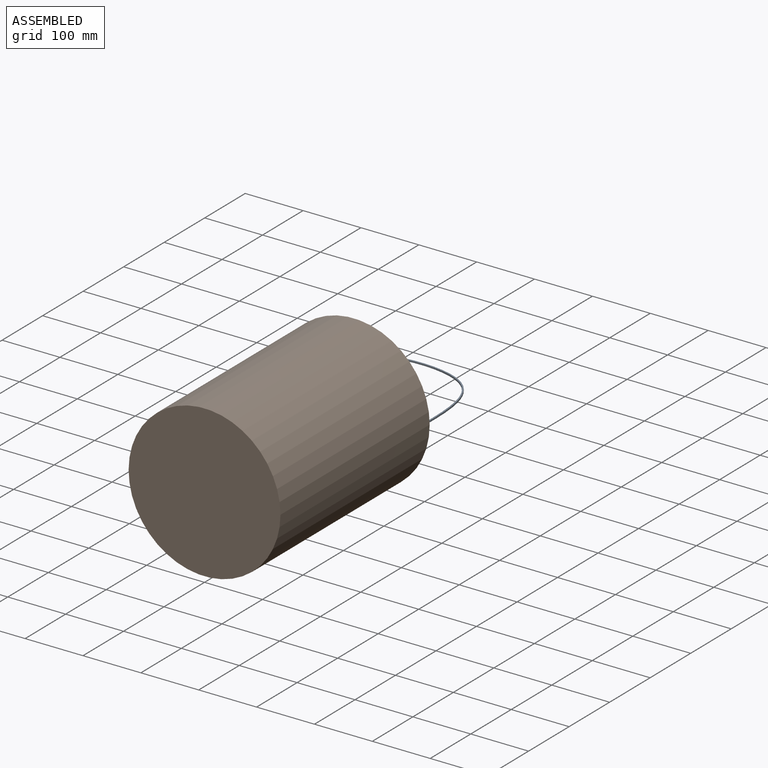
[diagram: assembled view]
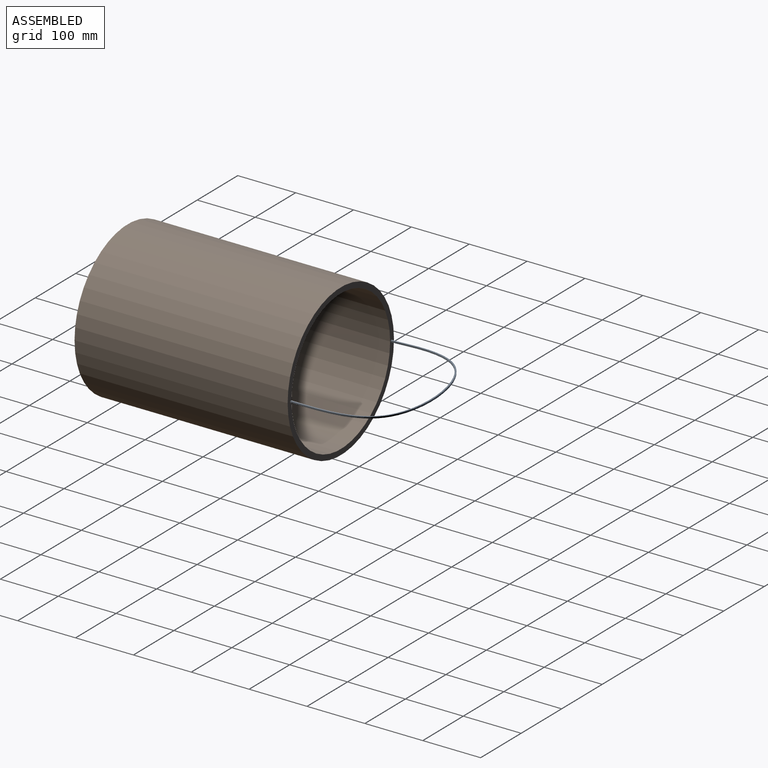
[diagram: assembled view, second angle]
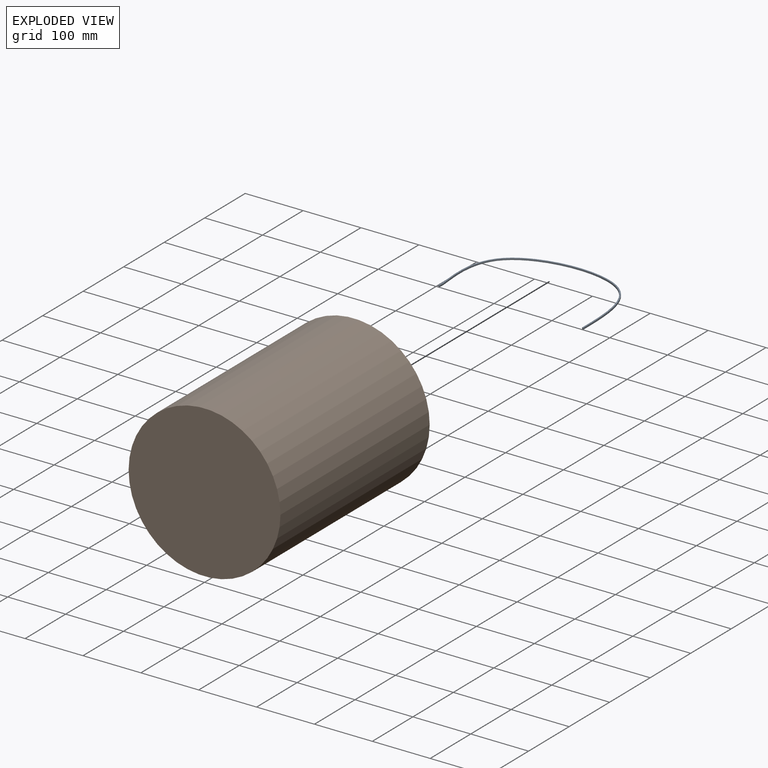
[diagram: exploded view]
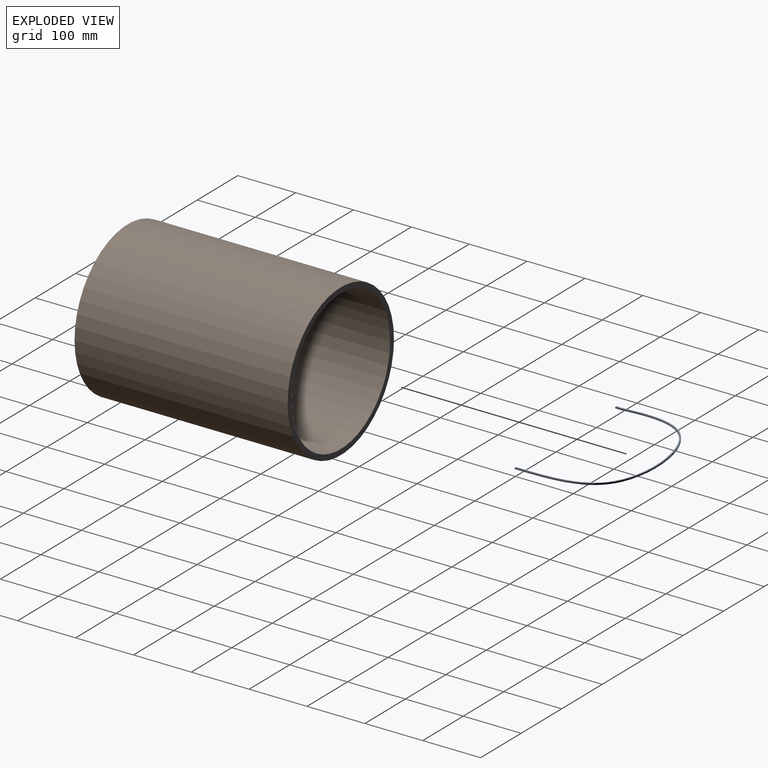
[diagram: exploded view, second angle]
ASSEMBLY  parts=2 mates=2
PART A: 6 faces, bbox 254.2x2.5x162.7 mm
  f0: plane 2.54x2.54mm, normal (0,0,-1), area 6.5mm2, adj f2,f3,f4,f5
  f1: plane 2.54x2.53mm, normal (0.09,0,-1), area 6.5mm2, adj f2,f3,f4,f5
  f2: bspline ~254.2x162.59mm, area 1235.6mm2, adj f0,f1,f3,f5
  f3: plane 254.2x162.61mm, normal (0,-1,0), area 1221.3mm2, adj f0,f1,f2,f4
  f4: bspline ~249.13x160.17mm, area 1216mm2, adj f0,f1,f3,f5
  f5: plane 254.2x162.61mm, normal (0,1,0), area 1221.3mm2, adj f0,f1,f2,f4
PART B: 5 faces, bbox 262.4x368.3x262.4 mm
  f0: cylinder r=131.19mm len=368.3mm, axis (0,1,0), area 303588.7mm2, adj f1,f2
  f1: plane 262.38x262.38mm, normal (0,-1,0), area 7566.4mm2, adj f0,f3
  f2: plane 262.38x262.38mm, normal (0,1,0), area 54070.2mm2, adj f0
  f3: cylinder r=121.67mm len=349.25mm, axis (0,-1,0), area 266984.2mm2, adj f1,f4
  f4: plane 243.33x243.33mm, normal (0,-1,0), area 46503.8mm2, adj f3
PLACE A rot(axis=(-1,0,0),90deg) t=(-124.46,368.3,0)mm
PLACE B rot(axis=(0,0,1),180deg) t=(0,0,0)mm
MATE slider A.f0 <-> B.f1  axis (0,-1,0) through (-124.46,368.3,0)mm
MATE planar B.f0 <-> A.f0  axis (0,1,0) through (0,368.3,0)mm
